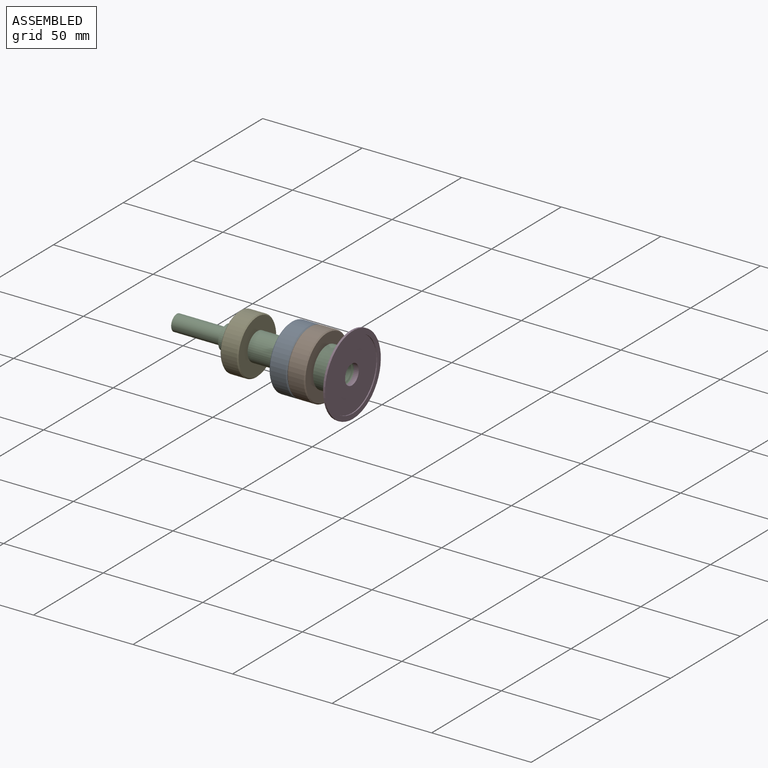
[diagram: assembled view]
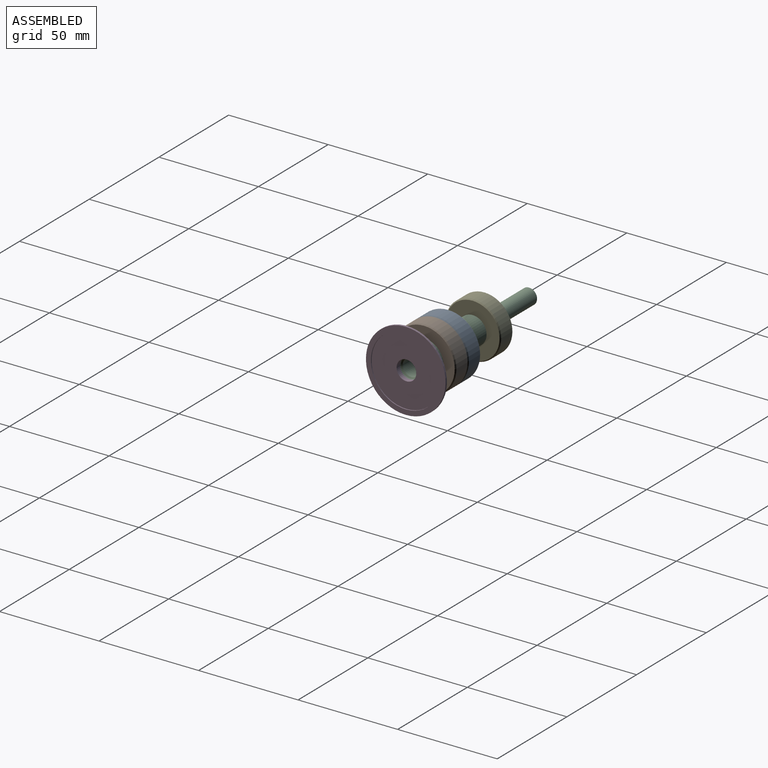
[diagram: assembled view, second angle]
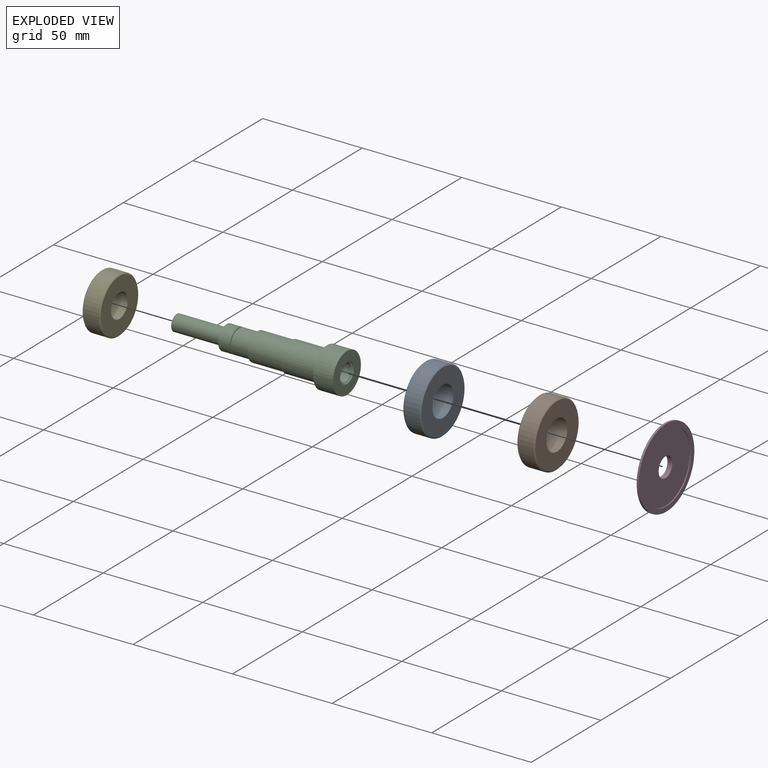
[diagram: exploded view]
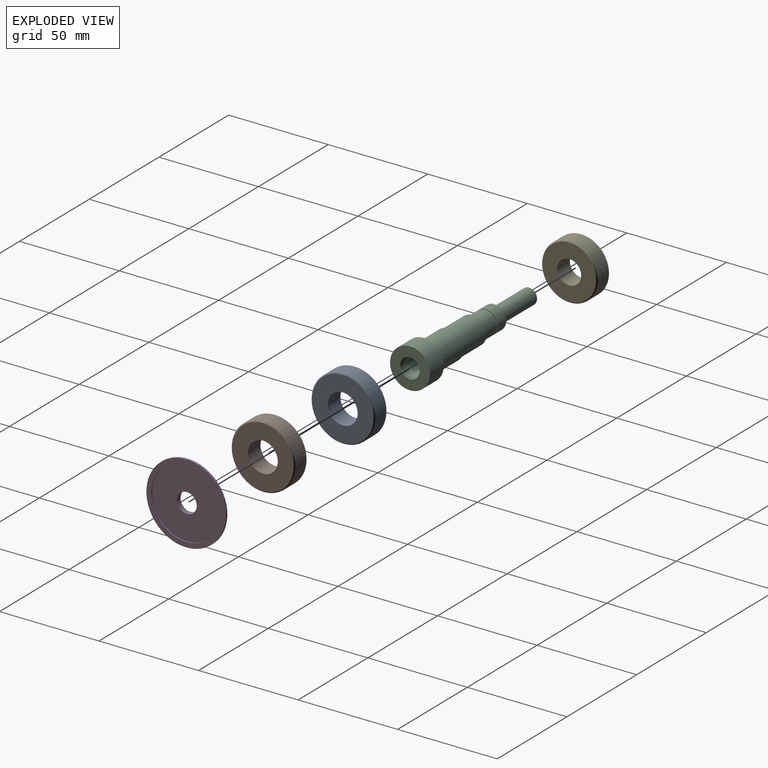
[diagram: exploded view, second angle]
ASSEMBLY  parts=5 mates=8
PART A: 6 faces, bbox 9x32x32 mm
  f0: cylinder r=16mm len=32mm, axis (1,0,0), area 804.2mm2, adj f4,f5
  f1: cylinder r=7.5mm len=15mm, axis (1,0,0), area 424.1mm2, adj f2,f3
  f2: plane 31x31mm, normal (-1,0,0), area 578.1mm2, adj f1,f4
  f3: plane 31x31mm, normal (1,0,0), area 578.1mm2, adj f1,f5
  f4: cone r=15.5mm half-angle=45deg, axis (1,0,0), area 70mm2, adj f0,f2
  f5: cone r=16mm half-angle=45deg, axis (-1,0,0), area 70mm2, adj f0,f3
PART B: 6 faces, bbox 9x32x32 mm
  f0: cylinder r=7.5mm len=15mm, axis (1,0,0), area 424.1mm2, adj f2,f3
  f1: cylinder r=16mm len=32mm, axis (1,0,0), area 804.2mm2, adj f4,f5
  f2: plane 31x31mm, normal (-1,0,0), area 578.1mm2, adj f0,f4
  f3: plane 31x31mm, normal (1,0,0), area 578.1mm2, adj f0,f5
  f4: cone r=15.5mm half-angle=45deg, axis (1,0,0), area 70mm2, adj f1,f2
  f5: cone r=16mm half-angle=45deg, axis (-1,0,0), area 70mm2, adj f1,f3
PART C: 19 faces, bbox 85.5x20x20 mm
  f0: cylinder r=10mm len=20mm, axis (1,0,0), area 628.3mm2, adj f1,f2
  f1: plane 20x20mm, normal (-1,0,0), area 137.4mm2, adj f0,f3
  f2: plane 20x20mm, normal (1,0,0), area 237.2mm2, adj f0,f10
  f3: cylinder r=7.5mm len=18mm, axis (1,0,0), area 848.2mm2, adj f1,f4
  f4: plane 15x15mm, normal (-1,0,0), area 22.8mm2, adj f3,f5
  f5: cylinder r=7mm len=17mm, axis (1,0,0), area 747.7mm2, adj f4,f6
  f6: plane 14x14mm, normal (-1,0,0), area 40.8mm2, adj f5,f7
  f7: cylinder r=6mm len=12mm, axis (1,0,0), area 339.3mm2, adj f6,f8
  f8: plane 12x12mm, normal (-1,0,0), area 18.1mm2, adj f7,f13
  f9: cone r=0mm half-angle=59deg, axis (1,0,0), area 23.6mm2, adj f10,f12
  f10: cylinder r=4.95mm len=9.9mm, axis (1,0,0), area 15.6mm2, adj f2,f9
  f11: cone r=0mm half-angle=59deg, axis (1,0,0), area 66.2mm2, adj f12
  f12: cylinder r=4.25mm len=19.08mm, axis (1,0,0), area 509.5mm2, adj f9,f11
  f13: cylinder r=5.5mm len=11mm, axis (1,0,0), area 17.3mm2, adj f8,f16
  f14: cylinder r=6mm len=12mm, axis (1,0,0), area 226.2mm2, adj f15,f16
  f15: plane 12x12mm, normal (-1,0,0), area 62.8mm2, adj f14,f17
  f16: plane 12x12mm, normal (1,0,0), area 18.1mm2, adj f13,f14
  f17: cylinder r=4mm len=25mm, axis (1,0,0), area 628.3mm2, adj f15,f18
  f18: plane 8x8mm, normal (-1,0,0), area 50.3mm2, adj f17
PART D: 11 faces, bbox 5x40x40 mm
  f0: cylinder r=20mm len=40mm, axis (-1,0,0), area 125.7mm2, adj f1,f7
  f1: plane 40x40mm, normal (1,0,0), area 294.5mm2, adj f0,f8
  f2: plane 30x30mm, normal (-1,0,0), area 175.9mm2, adj f4,f7
  f3: cylinder r=10.01mm len=20.01mm, axis (1,0,0), area 125.7mm2, adj f5,f6
  f4: cylinder r=13mm len=26mm, axis (1,0,0), area 163.4mm2, adj f2,f5
  f5: plane 26x26mm, normal (-1,0,0), area 216.5mm2, adj f3,f4
  f6: plane 20.01x20.01mm, normal (-1,0,0), area 237.5mm2, adj f3,f10
  f7: cone r=20mm half-angle=68.2deg, axis (1,0,0), area 592.1mm2, adj f0,f2
  f8: cylinder r=17.5mm len=35mm, axis (1,0,0), area 55mm2, adj f1,f9
  f9: plane 35x35mm, normal (1,0,0), area 885.1mm2, adj f8,f10
  f10: cylinder r=4.95mm len=9.9mm, axis (1,0,0), area 77.8mm2, adj f6,f9
PART E: 6 faces, bbox 9x28x28 mm
  f0: cylinder r=14mm len=28mm, axis (1,0,0), area 703.7mm2, adj f4,f5
  f1: cylinder r=6mm len=12mm, axis (1,0,0), area 339.3mm2, adj f2,f3
  f2: plane 27x27mm, normal (-1,0,0), area 459.5mm2, adj f1,f4
  f3: plane 27x27mm, normal (1,0,0), area 459.5mm2, adj f1,f5
  f4: cone r=13.5mm half-angle=45deg, axis (1,0,0), area 61.1mm2, adj f0,f2
  f5: cone r=14mm half-angle=45deg, axis (-1,0,0), area 61.1mm2, adj f0,f3
PLACE A t=(-11.93,-20.92,39.66)mm
PLACE B t=(6.07,-20.92,39.66)mm
PLACE C t=(-2.93,-20.92,39.66)mm
PLACE D t=(-2.93,-20.92,39.66)mm
PLACE E t=(-2.93,-20.92,39.66)mm
MATE cylindrical A.f1 <-> C.f3  axis (-1,0,0) through (-30.93,-20.92,39.66)mm
MATE planar E.f0 <-> C.f11  axis (1,0,0) through (-47.93,-20.92,39.66)mm
MATE planar A.f0 <-> B.f1  axis (1,0,0) through (-21.93,-20.92,39.66)mm
MATE cylindrical E.f1 <-> C.f5  axis (1,0,0) through (-47.93,-20.92,39.66)mm
MATE planar B.f1 <-> C.f11  axis (1,0,0) through (-12.93,-20.92,39.66)mm
MATE cylindrical B.f0 <-> C.f3  axis (-1,0,0) through (-21.93,-20.92,39.66)mm
MATE cylindrical D.f10 <-> C.f11  axis (1,0,0) through (-0.43,-20.92,39.66)mm
MATE planar D.f3 <-> C.f11  axis (-1,0,0) through (-2.93,-20.92,39.66)mm
